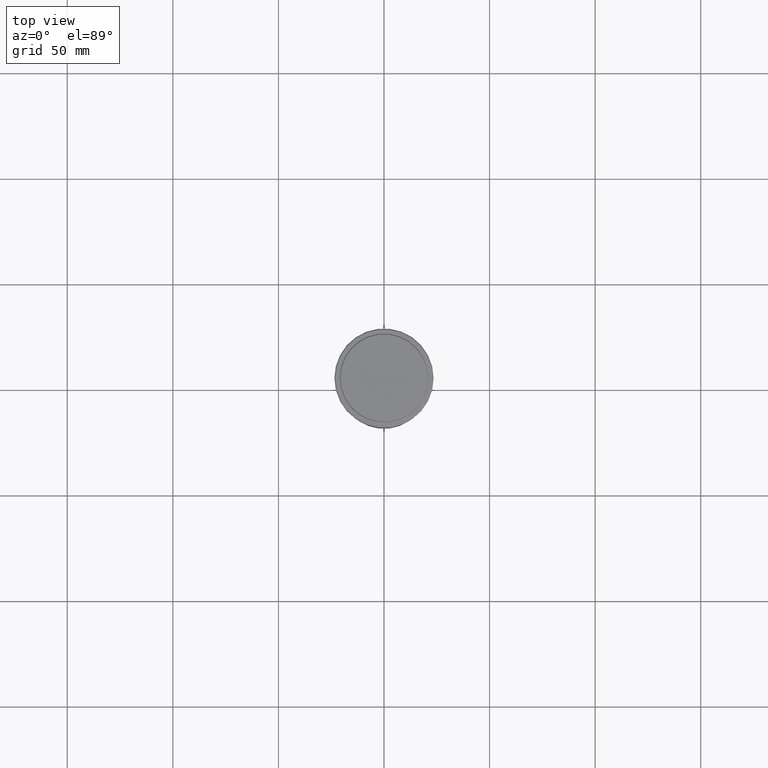
[diagram: clean part render]
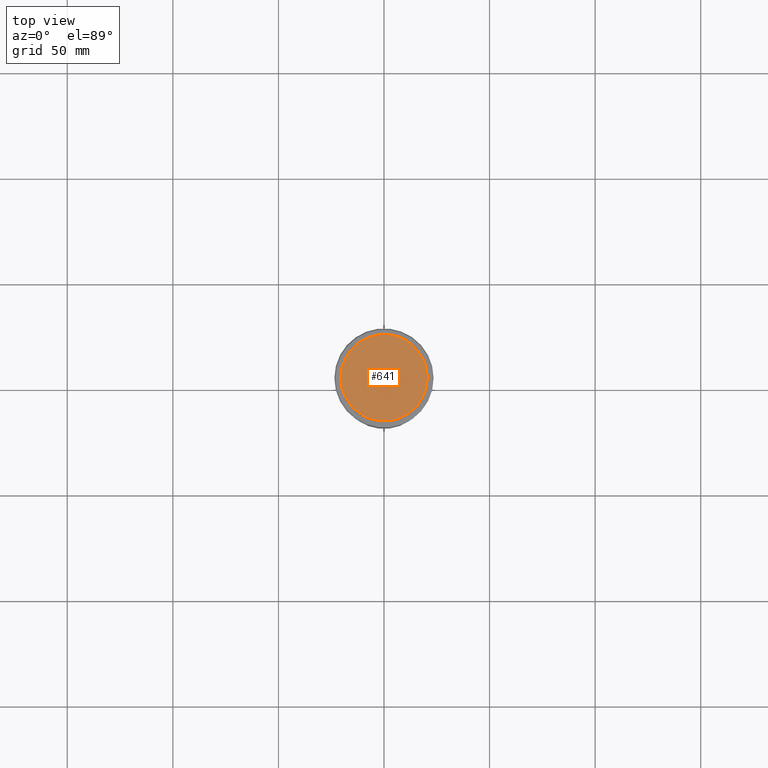
[diagram: same view with one face highlighted and labeled with its STEP entity id]
A machine part, top view. The second image highlights one B-rep face of the part: STEP entity #641.
In plain terms, the highlighted planar face has unit normal (0, -0, 1).
Its self-contained STEP definition (entity closure, byte-faithful):
#5 = EDGE_CURVE ( 'NONE', #284, #817, #102, .T. ) ;
#72 = PLANE ( 'NONE',  #837 ) ;
#102 = CIRCLE ( 'NONE', #1080, 20.49999999999996447 ) ;
#107 = CARTESIAN_POINT ( 'NONE',  ( 20.49999999999996447, 2.541142108230755507E-15, 0.000000000000000000 ) ) ;
#109 = AXIS2_PLACEMENT_3D ( 'NONE', #1214, #1111, #1089 ) ;
#157 = CIRCLE ( 'NONE', #109, 20.49999999999996447 ) ;
#284 = VERTEX_POINT ( 'NONE', #329 ) ;
#329 = CARTESIAN_POINT ( 'NONE',  ( -20.49999999999996447, 0.000000000000000000, 0.000000000000000000 ) ) ;
#517 = DIRECTION ( 'NONE',  ( 1.000000000000000000, 0.000000000000000000, 0.000000000000000000 ) ) ;
#641 = ADVANCED_FACE ( 'NONE', ( #1151 ), #72, .T. ) ;
#748 = CARTESIAN_POINT ( 'NONE',  ( 0.000000000000000000, 0.000000000000000000, 0.000000000000000000 ) ) ;
#817 = VERTEX_POINT ( 'NONE', #107 ) ;
#830 = DIRECTION ( 'NONE',  ( 0.000000000000000000, -0.000000000000000000, 1.000000000000000000 ) ) ;
#837 = AXIS2_PLACEMENT_3D ( 'NONE', #1062, #830, #517 ) ;
#863 = DIRECTION ( 'NONE',  ( 1.000000000000000000, 0.000000000000000000, 0.000000000000000000 ) ) ;
#1028 = ORIENTED_EDGE ( 'NONE', *, *, #5, .T. ) ;
#1062 = CARTESIAN_POINT ( 'NONE',  ( 0.000000000000000000, 0.000000000000000000, 0.000000000000000000 ) ) ;
#1080 = AXIS2_PLACEMENT_3D ( 'NONE', #748, #1195, #863 ) ;
#1089 = DIRECTION ( 'NONE',  ( 1.000000000000000000, 0.000000000000000000, 0.000000000000000000 ) ) ;
#1111 = DIRECTION ( 'NONE',  ( -0.000000000000000000, -0.000000000000000000, 1.000000000000000000 ) ) ;
#1151 = FACE_OUTER_BOUND ( 'NONE', #1221, .T. ) ;
#1195 = DIRECTION ( 'NONE',  ( -0.000000000000000000, -0.000000000000000000, 1.000000000000000000 ) ) ;
#1212 = EDGE_CURVE ( 'NONE', #817, #284, #157, .T. ) ;
#1214 = CARTESIAN_POINT ( 'NONE',  ( 0.000000000000000000, 0.000000000000000000, 0.000000000000000000 ) ) ;
#1221 = EDGE_LOOP ( 'NONE', ( #1028, #1417 ) ) ;
#1417 = ORIENTED_EDGE ( 'NONE', *, *, #1212, .T. ) ;